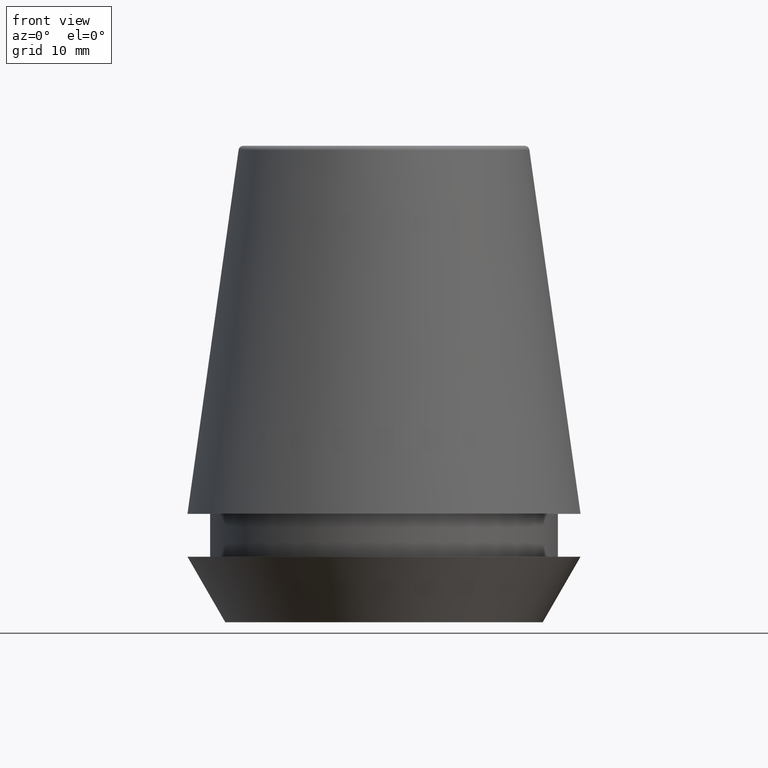
[diagram: clean part render]
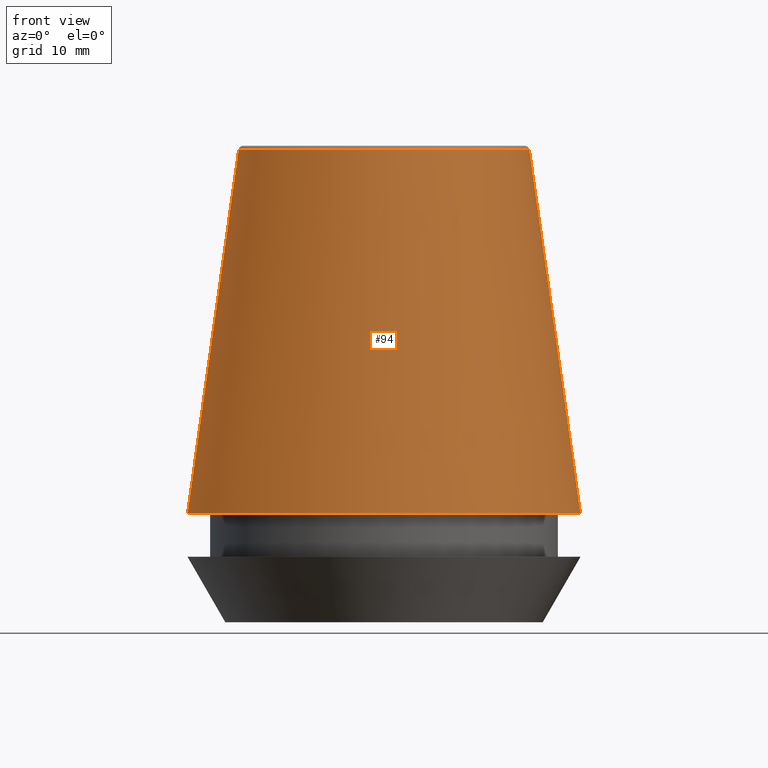
[diagram: same view with one face highlighted and labeled with its STEP entity id]
A machine part, front view. The second image highlights one B-rep face of the part: STEP entity #94.
In plain terms, the highlighted conical surface has half-angle 8 deg.
Its self-contained STEP definition (entity closure, byte-faithful):
#29 = AXIS2_PLACEMENT_3D ( 'NONE', #73, #275, #105 ) ;
#30 = CARTESIAN_POINT ( 'NONE',  ( 12.20600611160694300, 1.757755848304969800E-015, 39.65566924038402900 ) ) ;
#44 = VERTEX_POINT ( 'NONE', #45 ) ;
#45 = CARTESIAN_POINT ( 'NONE',  ( -16.50032537154048700, 0.0000000000000000000, 9.099999999999997900 ) ) ;
#61 = DIRECTION ( 'NONE',  ( -0.0000000000000000000, -0.0000000000000000000, 1.000000000000000000 ) ) ;
#63 = DIRECTION ( 'NONE',  ( -0.1391731009600586900, 0.0000000000000000000, -0.9902680687415712500 ) ) ;
#64 = ORIENTED_EDGE ( 'NONE', *, *, #154, .T. ) ;
#66 = DIRECTION ( 'NONE',  ( 0.0000000000000000000, 0.0000000000000000000, -1.000000000000000000 ) ) ;
#73 = CARTESIAN_POINT ( 'NONE',  ( 0.0000000000000000000, 0.0000000000000000000, 39.65566924038402900 ) ) ;
#82 = LINE ( 'NONE', #121, #91 ) ;
#86 = DIRECTION ( 'NONE',  ( 0.1391731009600586900, 1.704378926181473100E-017, -0.9902680687415712500 ) ) ;
#91 = VECTOR ( 'NONE', #63, 1000.000000000000000 ) ;
#94 = ADVANCED_FACE ( 'NONE', ( #95 ), #188, .T. ) ;
#95 = FACE_OUTER_BOUND ( 'NONE', #297, .T. ) ;
#105 = DIRECTION ( 'NONE',  ( 1.000000000000000000, 0.0000000000000000000, 0.0000000000000000000 ) ) ;
#121 = CARTESIAN_POINT ( 'NONE',  ( -16.50032537154048700, 0.0000000000000000000, 9.099999999999997900 ) ) ;
#138 = CIRCLE ( 'NONE', #29, 12.20600611160694300 ) ;
#139 = VERTEX_POINT ( 'NONE', #30 ) ;
#151 = DIRECTION ( 'NONE',  ( -1.000000000000000000, 0.0000000000000000000, 0.0000000000000000000 ) ) ;
#154 = EDGE_CURVE ( 'NONE', #44, #385, #239, .T. ) ;
#163 = VERTEX_POINT ( 'NONE', #192 ) ;
#179 = CARTESIAN_POINT ( 'NONE',  ( 16.50032537154048700, 2.020707065114692300E-015, 9.099999999999997900 ) ) ;
#186 = CARTESIAN_POINT ( 'NONE',  ( 0.0000000000000000000, 0.0000000000000000000, 9.099999999999997900 ) ) ;
#188 = CONICAL_SURFACE ( 'NONE', #331, 16.50032537154048700, 0.1396263401595395900 ) ;
#192 = CARTESIAN_POINT ( 'NONE',  ( -12.20600611160694300, 0.0000000000000000000, 39.65566924038402900 ) ) ;
#194 = CARTESIAN_POINT ( 'NONE',  ( 16.50032537154048700, 2.020707065114692300E-015, 9.099999999999997900 ) ) ;
#215 = EDGE_CURVE ( 'NONE', #163, #44, #82, .T. ) ;
#231 = EDGE_CURVE ( 'NONE', #139, #385, #381, .T. ) ;
#239 = CIRCLE ( 'NONE', #324, 16.50032537154048700 ) ;
#275 = DIRECTION ( 'NONE',  ( -0.0000000000000000000, -0.0000000000000000000, 1.000000000000000000 ) ) ;
#276 = ORIENTED_EDGE ( 'NONE', *, *, #215, .T. ) ;
#282 = ORIENTED_EDGE ( 'NONE', *, *, #231, .F. ) ;
#292 = VECTOR ( 'NONE', #86, 1000.000000000000000 ) ;
#297 = EDGE_LOOP ( 'NONE', ( #282, #323, #276, #64 ) ) ;
#316 = EDGE_CURVE ( 'NONE', #163, #139, #138, .T. ) ;
#321 = CARTESIAN_POINT ( 'NONE',  ( 0.0000000000000000000, 0.0000000000000000000, 9.099999999999997900 ) ) ;
#323 = ORIENTED_EDGE ( 'NONE', *, *, #316, .F. ) ;
#324 = AXIS2_PLACEMENT_3D ( 'NONE', #321, #61, #379 ) ;
#331 = AXIS2_PLACEMENT_3D ( 'NONE', #186, #66, #151 ) ;
#379 = DIRECTION ( 'NONE',  ( 1.000000000000000000, 0.0000000000000000000, 0.0000000000000000000 ) ) ;
#381 = LINE ( 'NONE', #179, #292 ) ;
#385 = VERTEX_POINT ( 'NONE', #194 ) ;